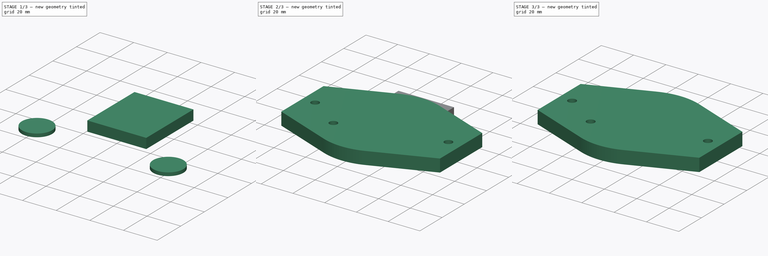
[diagram: build sequence overview — one tinted view per stage of 3, left to right]
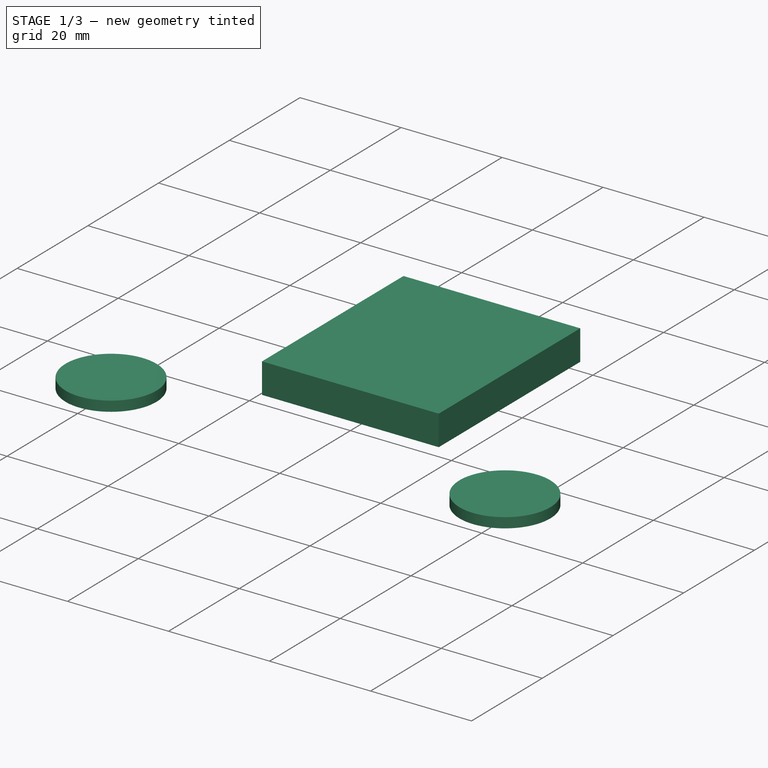
[diagram: stage 1 of 3 — iso view after this stage's code; geometry added in this stage tinted green]
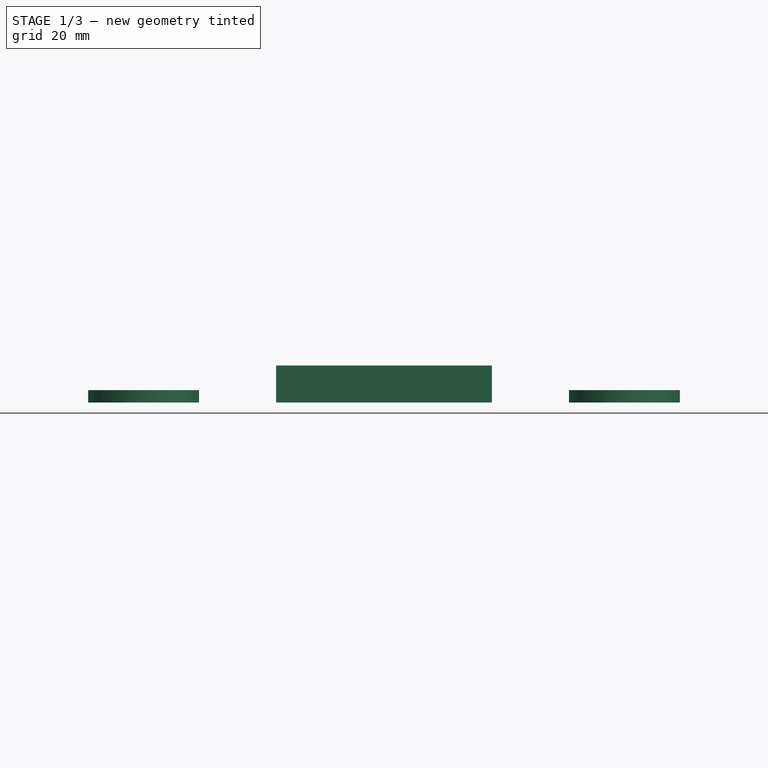
[diagram: stage 1 of 3 — front view after this stage's code; geometry added in this stage tinted green]
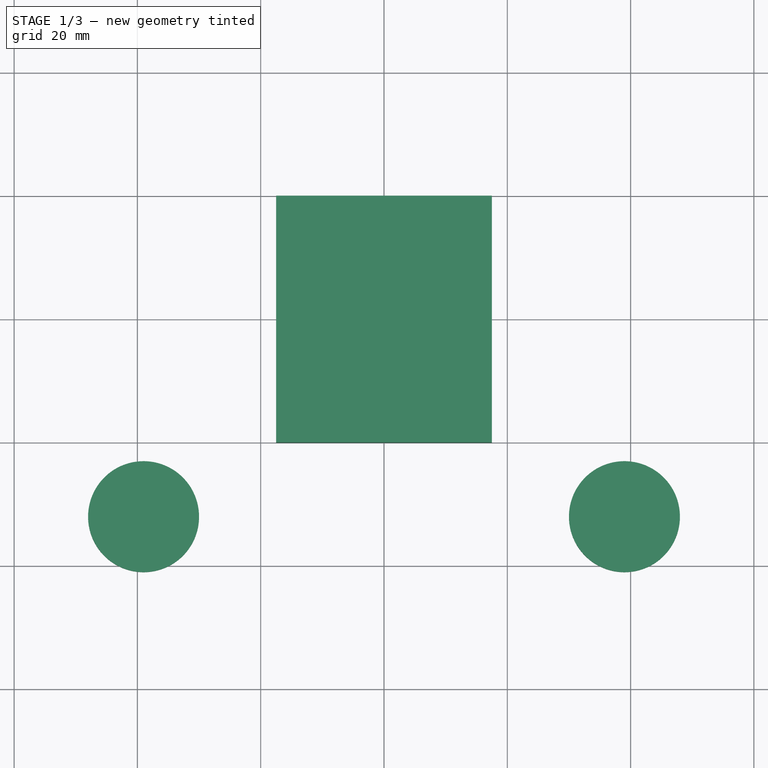
[diagram: stage 1 of 3 — top view after this stage's code; geometry added in this stage tinted green]
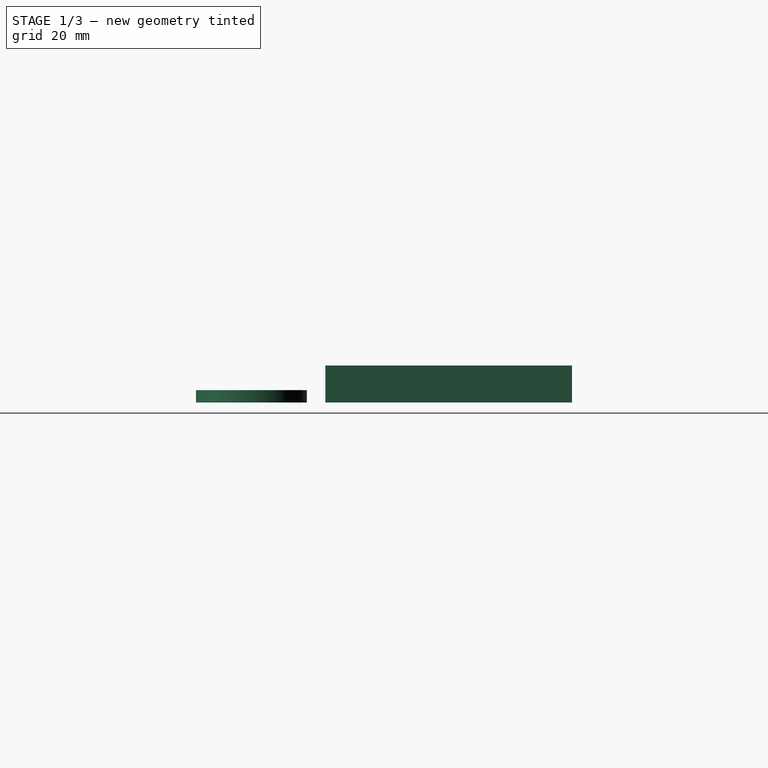
[diagram: stage 1 of 3 — right view after this stage's code; geometry added in this stage tinted green]
FCSTD DOCUMENT  (FreeCAD 0.17R13634 (Git))
Label: telefire_ledtower_base
License: All rights reserved
LicenseURL: http://en.wikipedia.org/wiki/All_rights_reserved
objects: Sketcher::SketchObject×3, Part::Extrusion×3, Part::Cut×2
note: 8 computed .brp shape members not serialized (recipe doc carries the construction recipe); baked Part::Feature solids carry a one-line shape summary decoded from their .brp

FEATURE [Sketcher::SketchObject] Sketch001  label="Handle Notch"
  sketch-geometry (4):
    g0: LineSegment StartX=-17.5 StartY=40 StartZ=0 EndX=17.5 EndY=40 EndZ=0
    g1: LineSegment StartX=17.5 StartY=40 StartZ=0 EndX=17.5 EndY=0 EndZ=0
    g2: LineSegment StartX=17.5 StartY=0 StartZ=0 EndX=-17.5 EndY=0 EndZ=0
    g3: LineSegment StartX=-17.5 StartY=0 StartZ=0 EndX=-17.5 EndY=40 EndZ=0
  constraints (12):
    c: Coincident(g0,g1)
    c: Coincident(g1,g2)
    c: Coincident(g2,g3)
    c: Coincident(g3,g0)
    c: Horizontal(g0)
    c: Horizontal(g2)
    c: Vertical(g1)
    c: Vertical(g3)
    c: PointOnObject(g1,g-1)
    c: DistanceX(g0,g0) = 35
    c: Symmetric(g0,g0,g-2)
    c: DistanceY(g3,g3) = 40
FEATURE [Part::Extrusion] Extrude001  label="Extrude Handle Notch"
  Base = -> Sketch001
  Dir = (0,0,1)
  DirMode = 2
  FaceMakerClass = Part::FaceMakerBullseye
  LengthFwd = 6
  LengthRev = 0
  Solid = true
  Symmetric = false
FEATURE [Sketcher::SketchObject] Sketch002
  MapMode = 2
  Support = -> [Sketch]
  sketch-geometry (2):
    g0: Circle CenterX=-39 CenterY=-12 CenterZ=0 NormalX=0 NormalY=0 NormalZ=1 AngleXU=0 Radius=9
    g1: Circle CenterX=39 CenterY=-12 CenterZ=0 NormalX=0 NormalY=0 NormalZ=1 AngleXU=0 Radius=9
  constraints (6):
    c: Equal(g0,g1)
    c: Horizontal(g0,g1)
    c: DistanceY(g0,g-1) = 12
    c: DistanceX(g0,g1) = 78
    c: Symmetric(g0,g1,g-2)
    c: Radius(g1) = 9
FEATURE [Part::Extrusion] Extrude002
  Base = -> Sketch002
  Dir = (0,0,1)
  DirMode = 2
  FaceMakerClass = Part::FaceMakerBullseye
  LengthFwd = 2
  LengthRev = 0
  Solid = true
  Symmetric = false
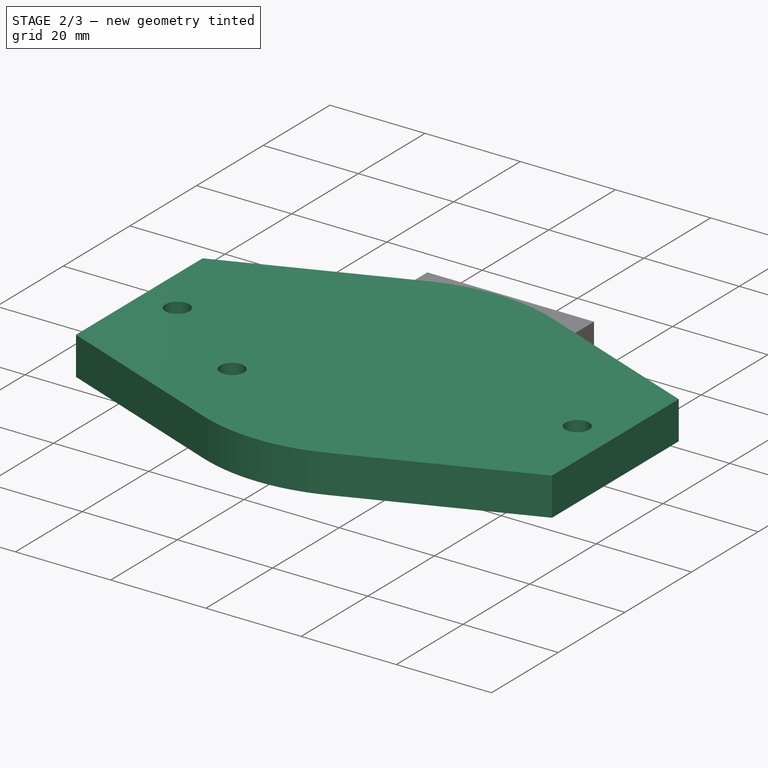
[diagram: stage 2 of 3 — iso view after this stage's code; geometry added in this stage tinted green]
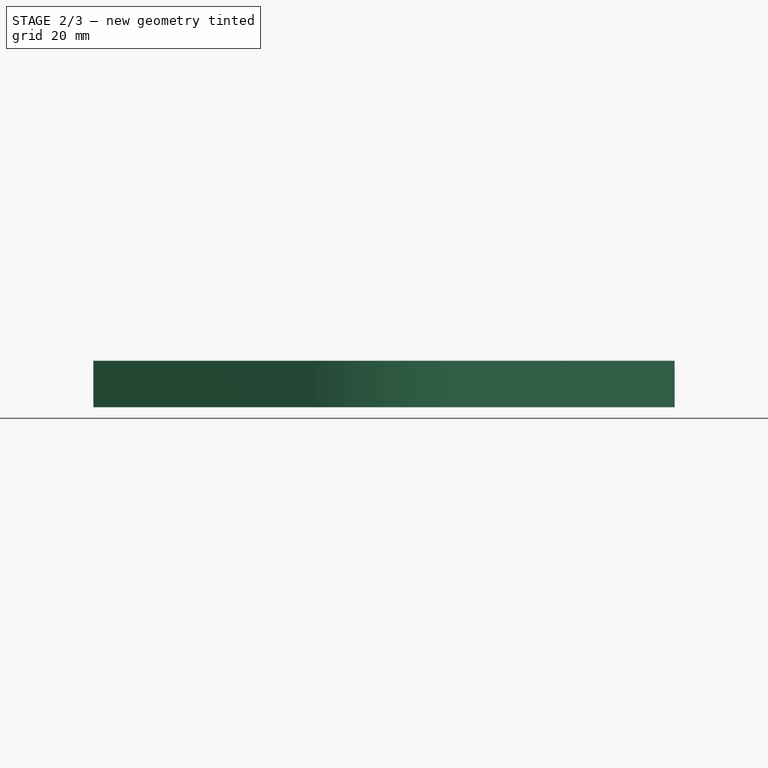
[diagram: stage 2 of 3 — front view after this stage's code; geometry added in this stage tinted green]
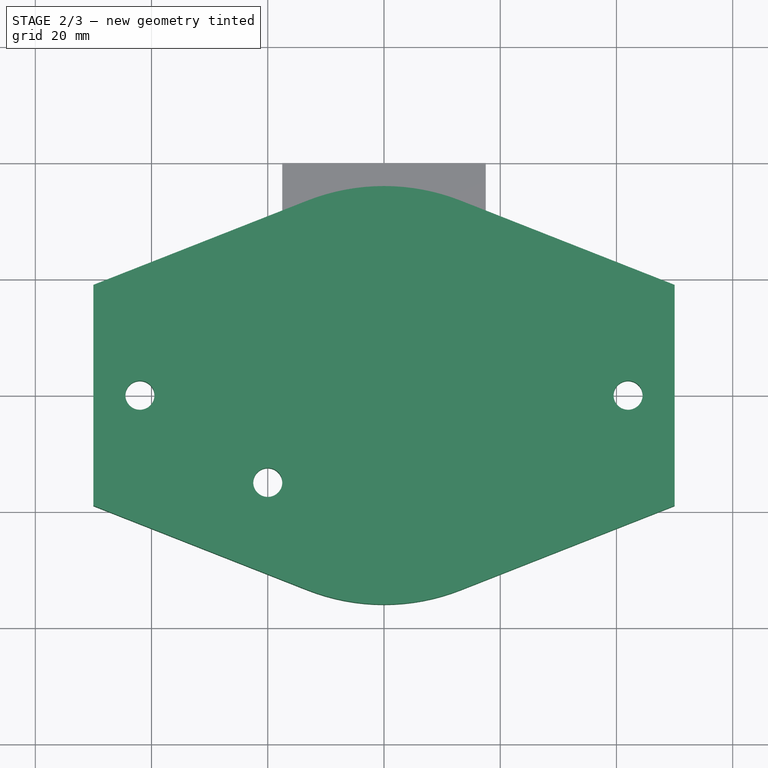
[diagram: stage 2 of 3 — top view after this stage's code; geometry added in this stage tinted green]
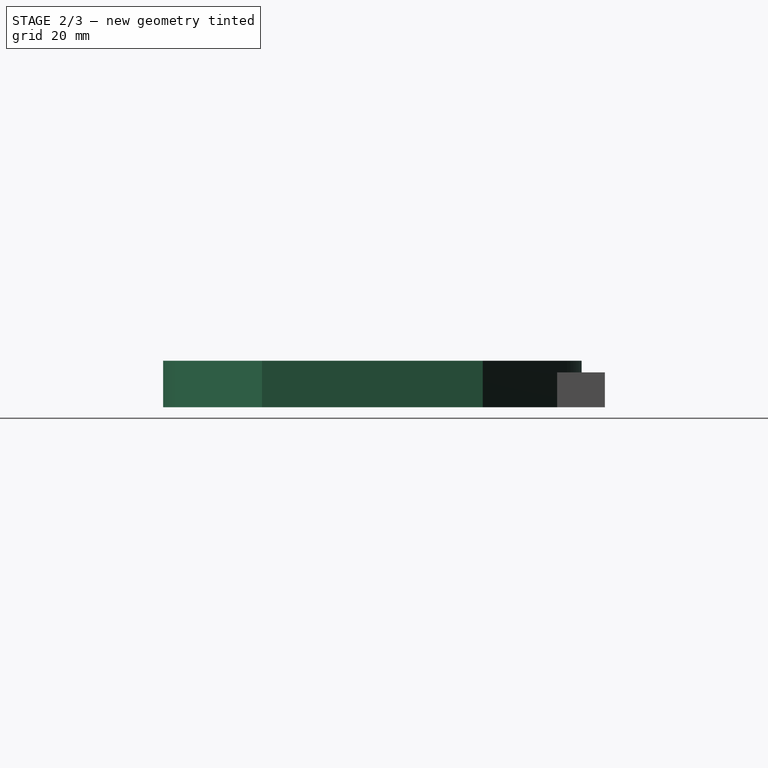
[diagram: stage 2 of 3 — right view after this stage's code; geometry added in this stage tinted green]
FEATURE [Sketcher::SketchObject] Sketch  label="Body"
  sketch-geometry (11):
    g0: LineSegment StartX=-50 StartY=19 StartZ=0 EndX=-50 EndY=-19 EndZ=0
    g1: LineSegment StartX=50 StartY=19 StartZ=0 EndX=50 EndY=-19 EndZ=0
    g2: LineSegment StartX=-50 StartY=19 StartZ=0 EndX=-13.1915 EndY=33.496 EndZ=0
    g3: LineSegment StartX=-50 StartY=-19 StartZ=0 EndX=-13.1915 EndY=-33.496 EndZ=0
    g4: LineSegment StartX=50 StartY=-19 StartZ=0 EndX=13.1915 EndY=-33.496 EndZ=0
    g5: LineSegment StartX=50 StartY=19 StartZ=0 EndX=13.1915 EndY=33.496 EndZ=0
    g6: ArcOfCircle CenterX=0 CenterY=0 CenterZ=0 NormalX=0 NormalY=0 NormalZ=1 AngleXU=0 Radius=36 StartAngle=1.19563 EndAngle=1.94597
    g7: ArcOfCircle CenterX=0 CenterY=0 CenterZ=0 NormalX=0 NormalY=0 NormalZ=1 AngleXU=0 Radius=36 StartAngle=4.33722 EndAngle=5.08756
    g8: Circle CenterX=-42 CenterY=0 CenterZ=0 NormalX=0 NormalY=0 NormalZ=1 AngleXU=0 Radius=2.5
    g9: Circle CenterX=42 CenterY=0 CenterZ=0 NormalX=0 NormalY=0 NormalZ=1 AngleXU=0 Radius=2.5
    g10: Circle CenterX=-20 CenterY=-15 CenterZ=0 NormalX=0 NormalY=0 NormalZ=1 AngleXU=0 Radius=2.5
  constraints (28):
    c: Vertical(g0)
    c: Vertical(g1)
    c: DistanceX(g0,g1) = 100
    c: Symmetric(g0,g1,g-2)
    c: DistanceY(g0,g0) = 38
    c: Symmetric(g0,g0,g-1)
    c: Equal(g0,g1)
    c: Coincident(g2,g0)
    c: Coincident(g3,g0)
    c: Coincident(g4,g1)
    c: Coincident(g5,g1)
    c: Coincident(g6,g-1)
    c: Coincident(g7,g-1)
    c: Radius(g6) = 36
    c: Equal(g6,g7)
    c: Tangent(g6,g2) = 1.5708
    c: Tangent(g6,g5) = -1.5708
    c: Tangent(g7,g3) = -1.5708
    c: Tangent(g7,g4) = 1.5708
    c: PointOnObject(g8,g-1)
    c: Radius(g8) = 2.5
    c: PointOnObject(g9,g-1)
    c: Equal(g8,g9)
    c: DistanceX(g8,g9) = 84
    c: Symmetric(g8,g9,g-2)
    c: DistanceY(g10,g-1) = 15
    c: Equal(g10,g9)
    c: DistanceX(g0,g10) = 30
FEATURE [Part::Extrusion] Extrude  label="Extrude Body"
  Base = -> Sketch
  Dir = (0,0,1)
  DirMode = 2
  FaceMakerClass = Part::FaceMakerBullseye
  LengthFwd = 8
  LengthRev = 0
  Solid = true
  Symmetric = false
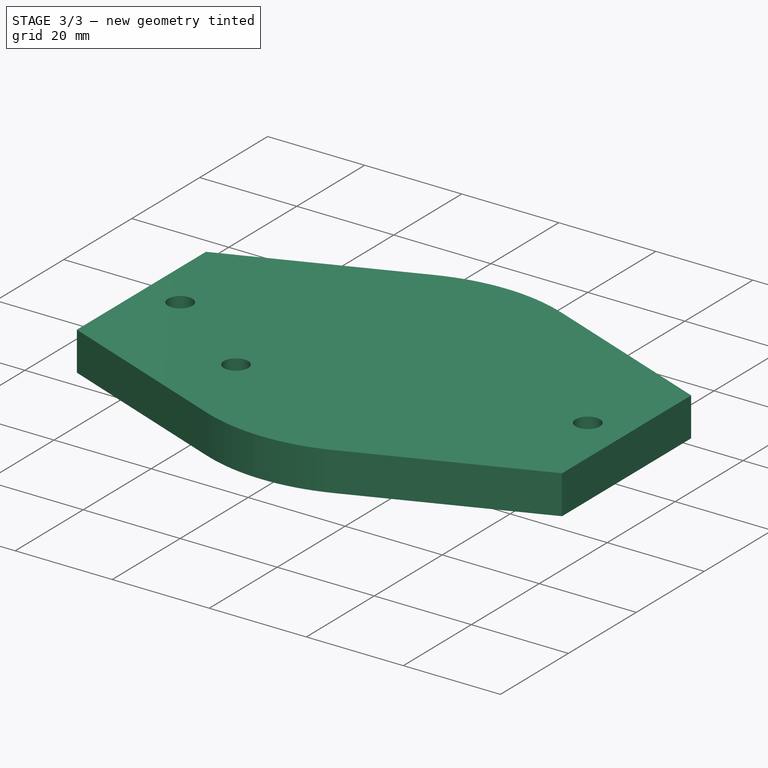
[diagram: stage 3 of 3 — iso view after this stage's code; geometry added in this stage tinted green]
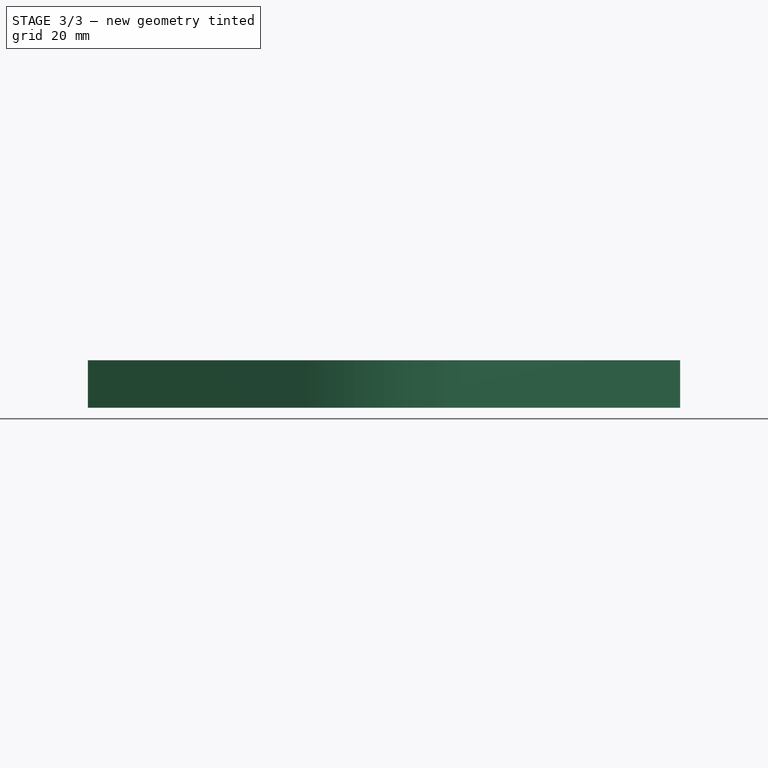
[diagram: stage 3 of 3 — front view after this stage's code; geometry added in this stage tinted green]
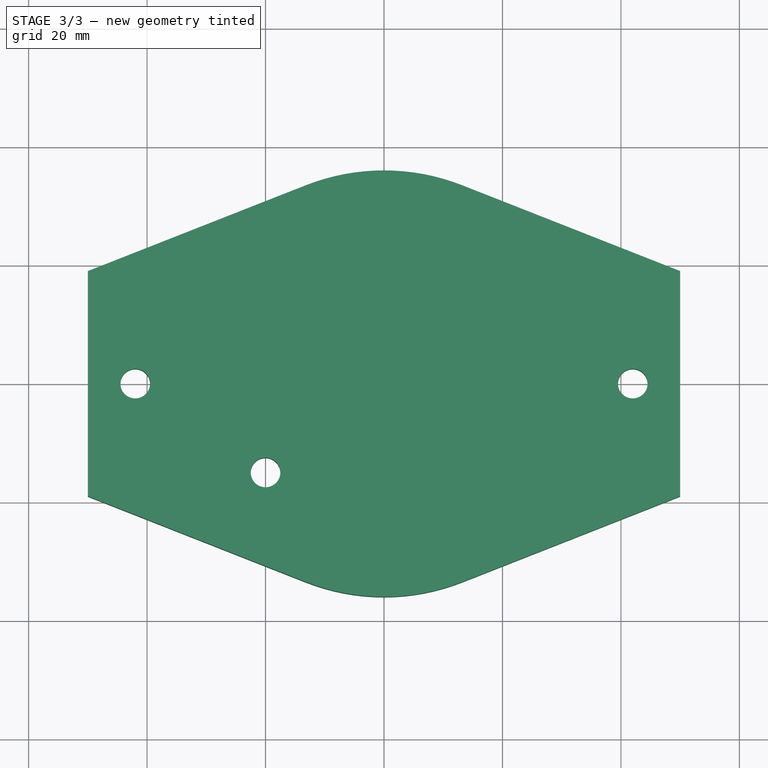
[diagram: stage 3 of 3 — top view after this stage's code; geometry added in this stage tinted green]
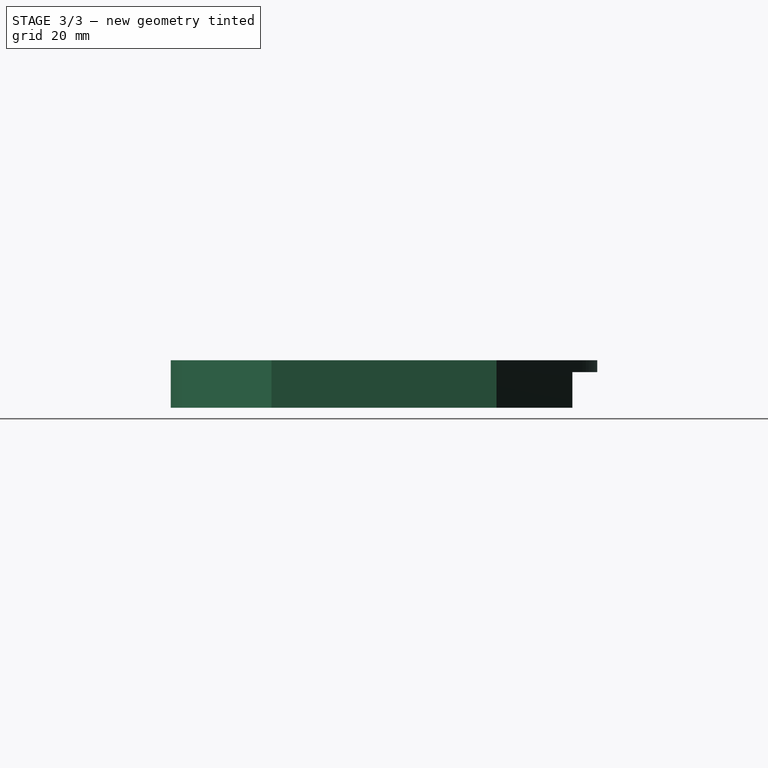
[diagram: stage 3 of 3 — right view after this stage's code; geometry added in this stage tinted green]
FEATURE [Part::Cut] Cut
  Base = -> Extrude
  Tool = -> Extrude001
FEATURE [Part::Cut] Cut001
  Base = -> Cut
  Tool = -> Extrude002
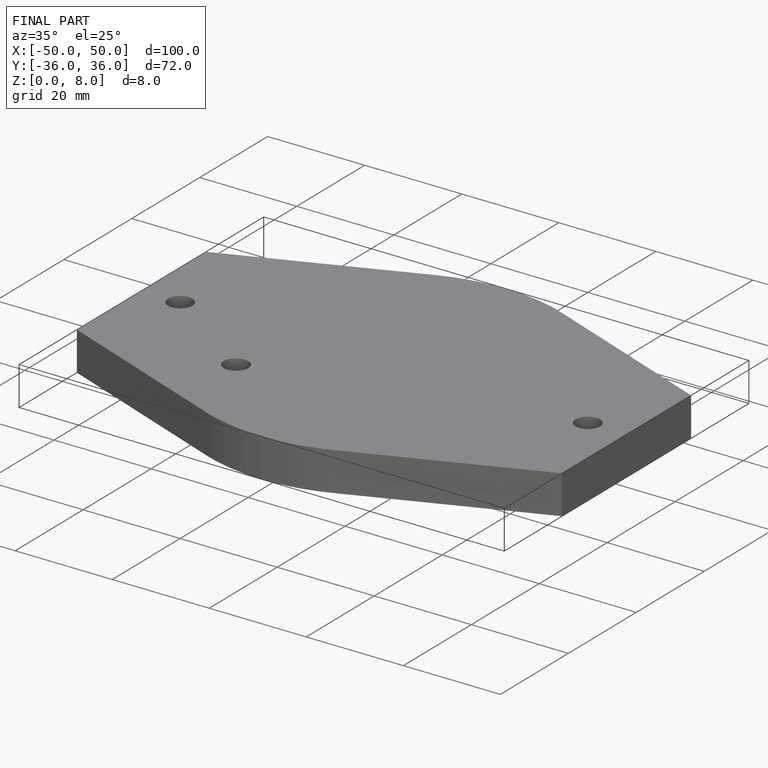
[diagram: finished part — iso view with bounding-box wireframe]
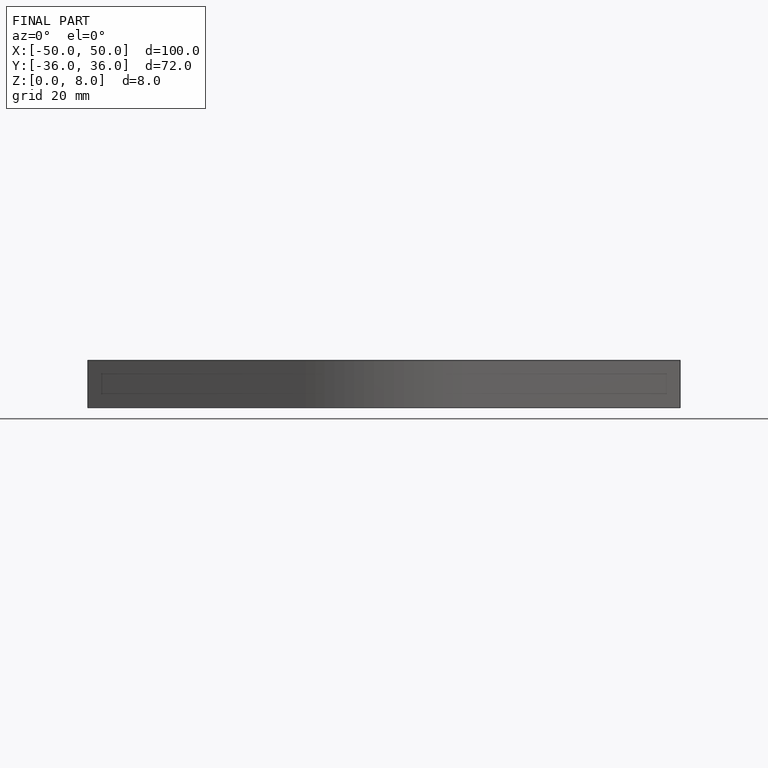
[diagram: finished part — front view with bounding-box wireframe]
